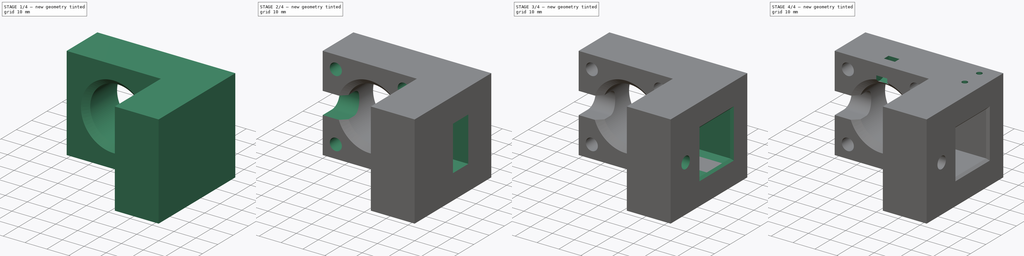
[diagram: build sequence overview — one tinted view per stage of 4, left to right]
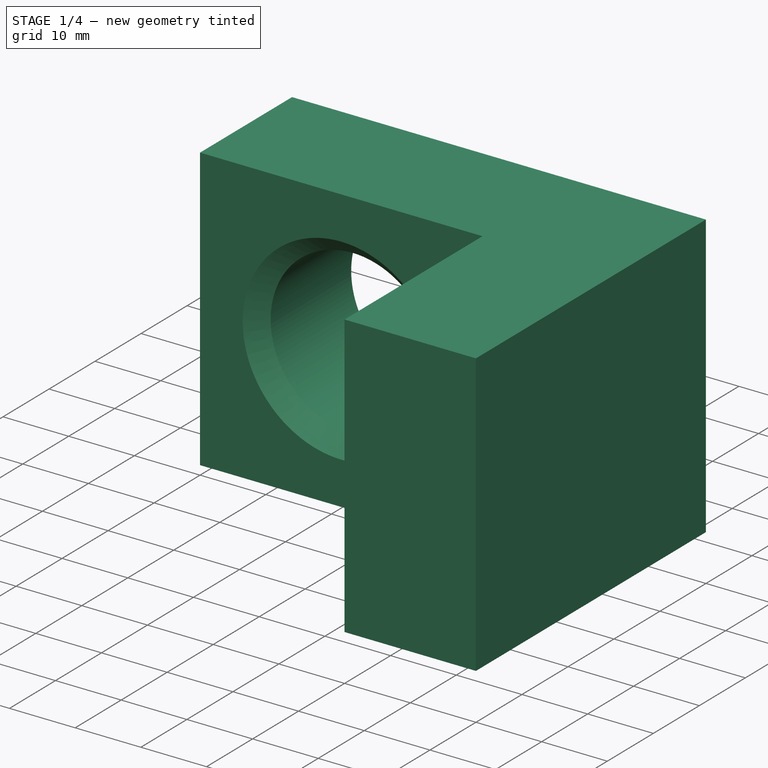
[diagram: stage 1 of 4 — iso view after this stage's code; geometry added in this stage tinted green]
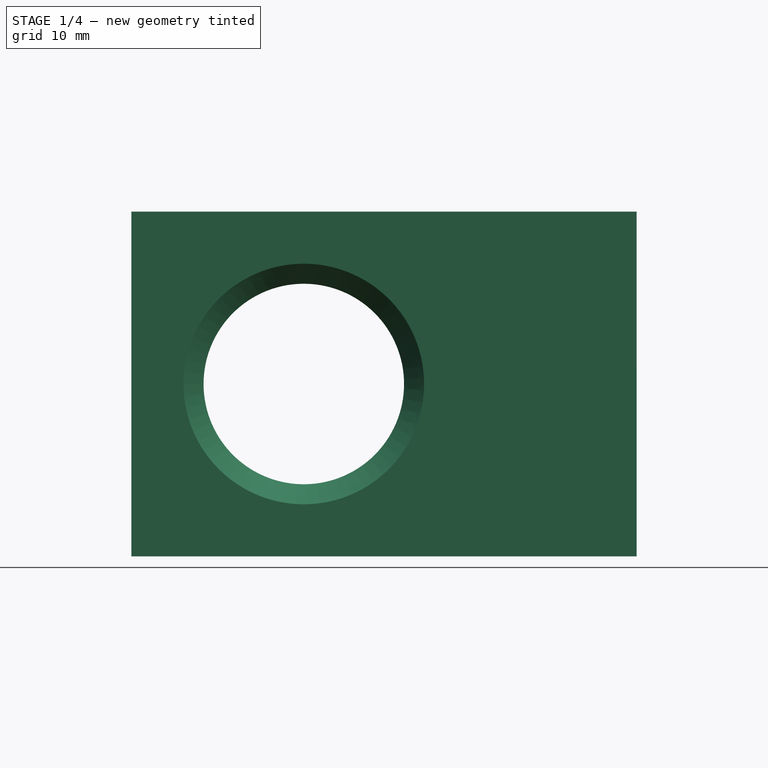
[diagram: stage 1 of 4 — front view after this stage's code; geometry added in this stage tinted green]
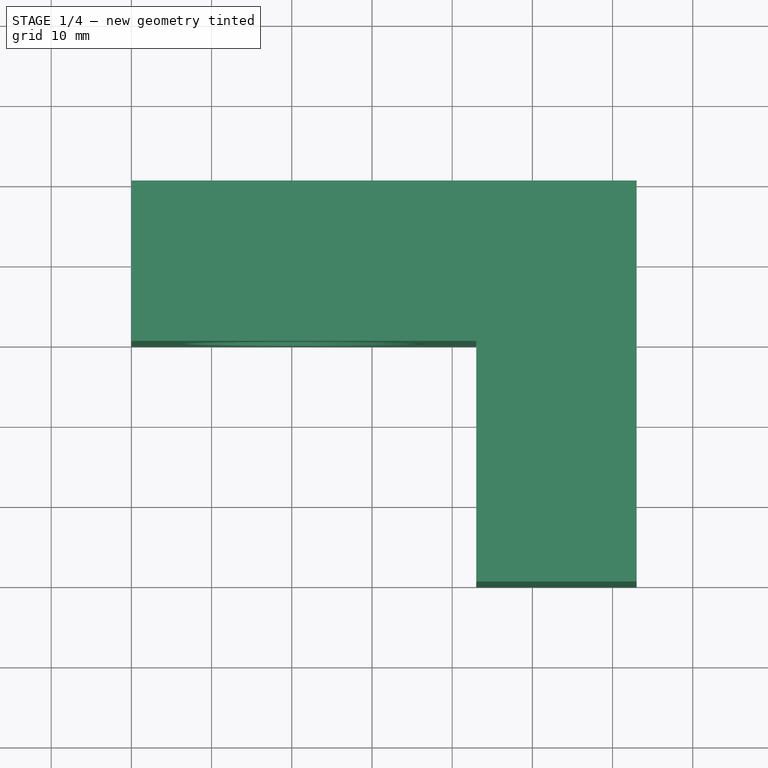
[diagram: stage 1 of 4 — top view after this stage's code; geometry added in this stage tinted green]
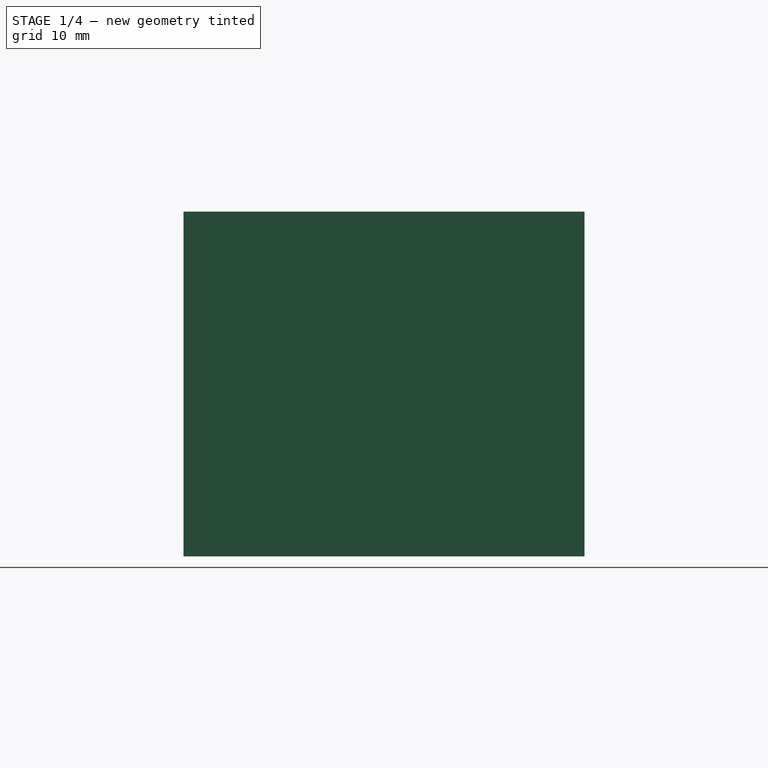
[diagram: stage 1 of 4 — right view after this stage's code; geometry added in this stage tinted green]
FCSTD DOCUMENT  (FreeCAD 0.20R29177 (Git))
Label: Feed motor
License: All rights reserved
LicenseURL: http://en.wikipedia.org/wiki/All_rights_reserved
objects: Sketcher::SketchObject×9, PartDesign::Hole×4, PartDesign::Pocket×4, PartDesign::Pad×1, PartDesign::Chamfer×1, PartDesign::Body×1
note: 30 computed .brp shape members not serialized (recipe doc carries the construction recipe); baked Part::Feature solids carry a one-line shape summary decoded from their .brp

FEATURE [Sketcher::SketchObject] Sketch
  FullyConstrained = false
  MapMode = 5
  Support = -> [XY_Plane]
  sketch-geometry (6):
    g0: LineSegment StartX=43 StartY=-20 StartZ=0 EndX=0 EndY=-20 EndZ=0
    g1: LineSegment StartX=0 StartY=-20 StartZ=0 EndX=0 EndY=0 EndZ=0
    g2: LineSegment StartX=63 StartY=1e-16 StartZ=0 EndX=63 EndY=-50 EndZ=0
    g3: LineSegment StartX=63 StartY=-50 StartZ=0 EndX=43 EndY=-50 EndZ=0
    g4: LineSegment StartX=43 StartY=-50 StartZ=0 EndX=43 EndY=-20 EndZ=0
    g5: LineSegment StartX=0 StartY=1e-16 StartZ=0 EndX=63 EndY=1e-16 EndZ=0
  constraints (17):
    c: Coincident(g0,g1)
    c: Horizontal(g0)
    c: Vertical(g1)
    c: DistanceY(g1,g1) = 20
    c: PointOnObject(g2,g-1)
    c: Vertical(g2)
    c: Coincident(g3,g2)
    c: Horizontal(g3)
    c: Coincident(g4,g3)
    c: Vertical(g4)
    c: Coincident(g0,g4)
    c: DistanceX(g0,g0) = 43
    c: Coincident(g5,g1)
    c: Coincident(g5,g2)
    c: Horizontal(g5)
    c: DistanceX(g3,g3) = 20
    c: DistanceY(g3,g0) = 30
FEATURE [PartDesign::Pad] Pad
  Direction = (1,1,1)
  Length = 43
  Length2 = 100
  Profile = -> Sketch
  Type = 0
FEATURE [Sketcher::SketchObject] Sketch001
  ExternalGeometry = -> [Pad]
  FullyConstrained = false
  MapMode = 5
  Placement = pos=(0,-20,0) rot=(1,0,0;1.5708rad)
  Support = -> [Pad]
  sketch-geometry (4):
    g0: GeomPoint X=21.5 Y=21.5 Z=0
    g1: LineSegment StartX=0 StartY=43 StartZ=0 EndX=21.5 EndY=21.5 EndZ=0
    g2: LineSegment StartX=21.5 StartY=21.5 StartZ=0 EndX=0 EndY=0 EndZ=0
    g3: Circle CenterX=21.5 CenterY=21.5 CenterZ=0 NormalX=0 NormalY=0 NormalZ=1 AngleXU=0 Radius=7.98542
  constraints (7):
    c: Coincident(g1,g-3)
    c: Coincident(g1,g0)
    c: Coincident(g2,g0)
    c: Coincident(g2,g-1)
    c: Equal(g2,g1)
    c: Angle(g-3,g1) = 0.785398
    c: Coincident(g3,g0)
FEATURE [PartDesign::Hole] Hole
  BaseFeature = -> Pad
  CustomThreadClearance = 0
  Depth = 25
  DepthType = 1
  Diameter = 25
  DrillForDepth = false
  DrillPoint = 1
  DrillPointAngle = 118
  HoleCutCountersinkAngle = 90
  HoleCutCustomValues = false
  HoleCutDepth = 0
  HoleCutDiameter = 30
  HoleCutType = 2
  ModelThread = false
  Profile = -> Sketch001
  Tapered = false
  TaperedAngle = 90
  ThreadClass = 0
  ThreadDepth = 23.5
  ThreadDepthType = 0
  ThreadDirection = 0
  ThreadFit = 0
  ThreadSize = 0
  ThreadType = 0
  Threaded = false
  UseCustomThreadClearance = false
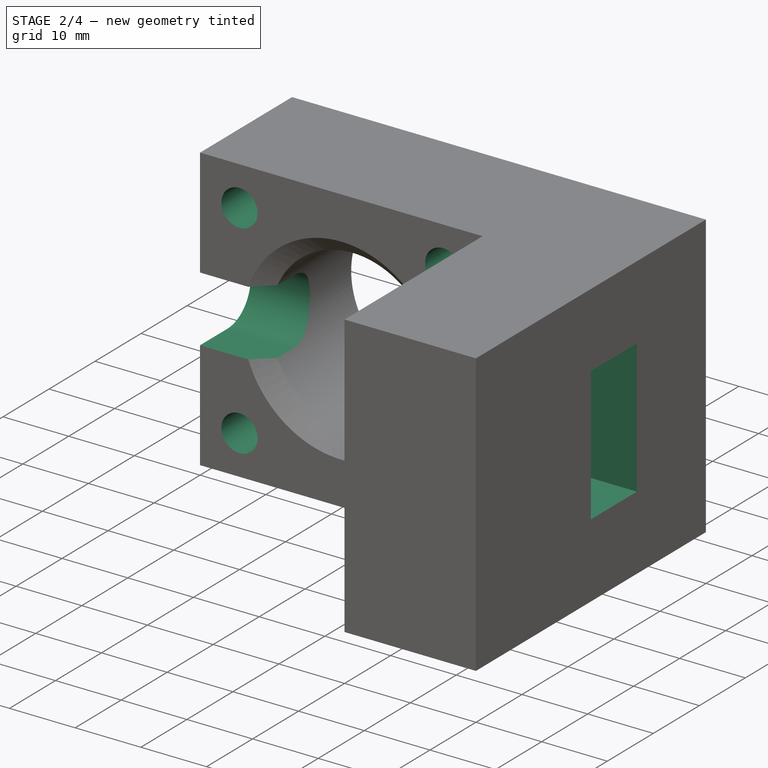
[diagram: stage 2 of 4 — iso view after this stage's code; geometry added in this stage tinted green]
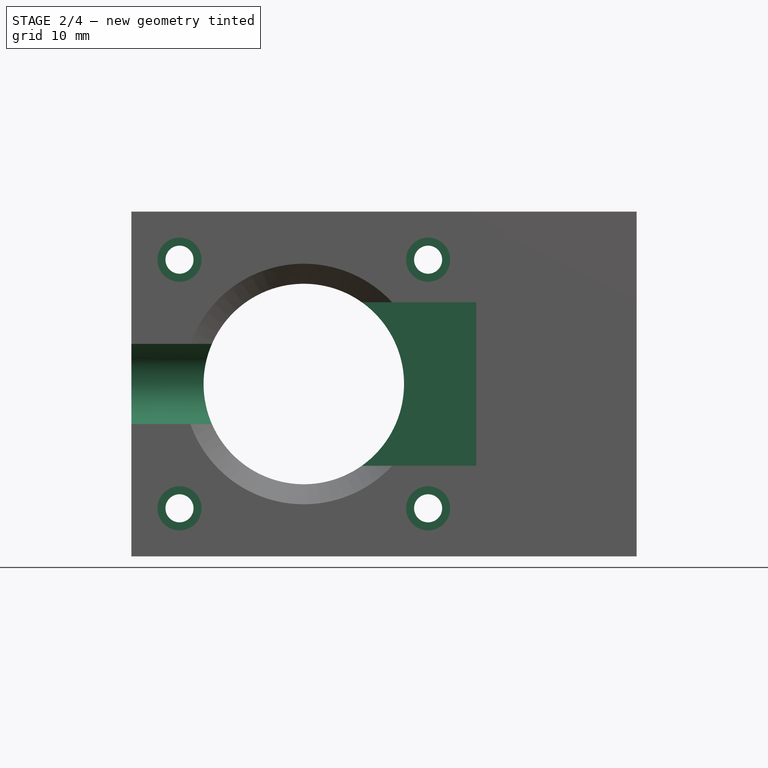
[diagram: stage 2 of 4 — front view after this stage's code; geometry added in this stage tinted green]
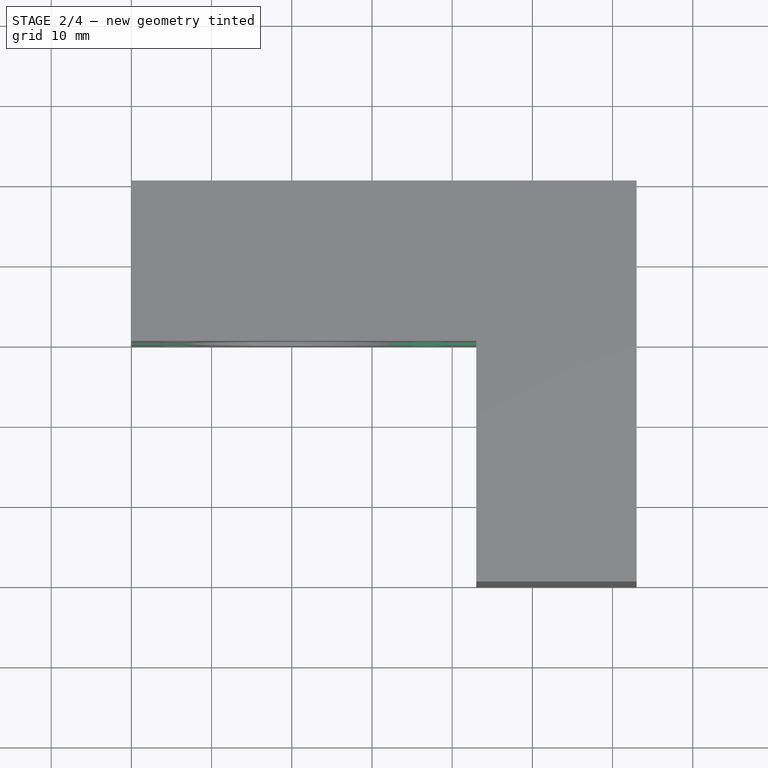
[diagram: stage 2 of 4 — top view after this stage's code; geometry added in this stage tinted green]
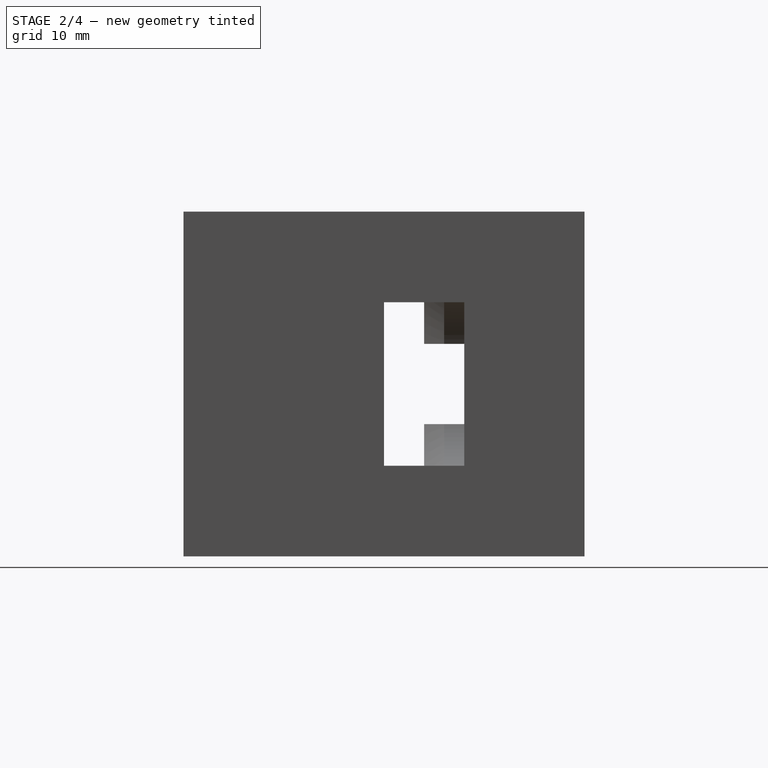
[diagram: stage 2 of 4 — right view after this stage's code; geometry added in this stage tinted green]
FEATURE [Sketcher::SketchObject] Sketch002
  ExternalGeometry = -> [Hole]
  FullyConstrained = false
  MapMode = 5
  Placement = pos=(0,-20,0) rot=(1,0,0;1.5708rad)
  Support = -> [Hole]
  sketch-geometry (10):
    g0: LineSegment StartX=6 StartY=37 StartZ=0 EndX=37 EndY=37 EndZ=0
    g1: LineSegment StartX=37 StartY=37 StartZ=0 EndX=37 EndY=6 EndZ=0
    g2: LineSegment StartX=37 StartY=6 StartZ=0 EndX=6 EndY=6 EndZ=0
    g3: LineSegment StartX=6 StartY=6 StartZ=0 EndX=6 EndY=37 EndZ=0
    g4: LineSegment StartX=0 StartY=43 StartZ=0 EndX=6 EndY=37 EndZ=0
    g5: LineSegment StartX=6 StartY=6 StartZ=0 EndX=-9e-16 EndY=0 EndZ=0
    g6: Circle CenterX=6 CenterY=37 CenterZ=0 NormalX=0 NormalY=0 NormalZ=1 AngleXU=0 Radius=2.36262
    g7: Circle CenterX=37 CenterY=37 CenterZ=0 NormalX=0 NormalY=0 NormalZ=1 AngleXU=0 Radius=1.92295
    g8: Circle CenterX=37 CenterY=6 CenterZ=0 NormalX=0 NormalY=0 NormalZ=1 AngleXU=0 Radius=1.78946
    g9: Circle CenterX=6 CenterY=6 CenterZ=0 NormalX=0 NormalY=0 NormalZ=1 AngleXU=0 Radius=1.62966
  constraints (20):
    c: Coincident(g0,g1)
    c: Coincident(g1,g2)
    c: Coincident(g2,g3)
    c: Coincident(g3,g0)
    c: Horizontal(g0)
    c: Horizontal(g2)
    c: Vertical(g1)
    c: Vertical(g3)
    c: Coincident(g4,g-3)
    c: Coincident(g4,g0)
    c: Coincident(g5,g2)
    c: Coincident(g5,g-1)
    c: Equal(g4,g5)
    c: Equal(g2,g3)
    c: Angle(g-3,g4) = 0.785398
    c: DistanceY(g3,g3) = 31
    c: Coincident(g6,g0)
    c: Coincident(g7,g0)
    c: Coincident(g8,g1)
    c: Coincident(g9,g2)
FEATURE [PartDesign::Hole] Hole001  label="Hole 4x"
  BaseFeature = -> Hole
  CustomThreadClearance = 0
  Depth = 25
  DepthType = 1
  Diameter = 3.5
  DrillForDepth = false
  DrillPoint = 1
  DrillPointAngle = 118
  HoleCutCountersinkAngle = 90
  HoleCutCustomValues = false
  HoleCutDepth = 15
  HoleCutDiameter = 5.5
  HoleCutType = 1
  ModelThread = false
  Profile = -> Sketch002
  Tapered = false
  TaperedAngle = 90
  ThreadClass = 0
  ThreadDepth = 23.5
  ThreadDepthType = 0
  ThreadDirection = 0
  ThreadFit = 0
  ThreadSize = 0
  ThreadType = 0
  Threaded = false
  UseCustomThreadClearance = false
FEATURE [Sketcher::SketchObject] Sketch003
  ExternalGeometry = -> [Hole001]
  FullyConstrained = false
  MapMode = 5
  Placement = pos=(0,-20,0) rot=(1,0,0;1.5708rad)
  Support = -> [Hole001]
  sketch-geometry (6):
    g0: LineSegment StartX=22.9002 StartY=31.7 StartZ=0 EndX=85.1102 EndY=31.7 EndZ=0
    g1: LineSegment StartX=85.1102 StartY=31.7 StartZ=0 EndX=85.1102 EndY=11.3 EndZ=0
    g2: LineSegment StartX=85.1102 StartY=11.3 StartZ=0 EndX=22.9002 EndY=11.3 EndZ=0
    g3: LineSegment StartX=22.9002 StartY=11.3 StartZ=0 EndX=22.9002 EndY=31.7 EndZ=0
    g4: LineSegment StartX=0 StartY=43 StartZ=0 EndX=22.9002 EndY=31.7 EndZ=0
    g5: LineSegment StartX=22.9002 StartY=11.3 StartZ=0 EndX=0 EndY=0 EndZ=0
  constraints (14):
    c: Coincident(g0,g1)
    c: Coincident(g1,g2)
    c: Coincident(g2,g3)
    c: Coincident(g3,g0)
    c: Horizontal(g0)
    c: Horizontal(g2)
    c: Vertical(g1)
    c: Vertical(g3)
    c: Coincident(g4,g-3)
    c: Coincident(g4,g0)
    c: Coincident(g5,g2)
    c: Coincident(g5,g-1)
    c: Equal(g4,g5)
    c: DistanceY(g3,g3) = 20.4
FEATURE [PartDesign::Pocket] Pocket
  BaseFeature = -> Hole001
  Direction = (1,1,1)
  Length = 5
  Length2 = 5
  Profile = -> Sketch003
  Type = 4
FEATURE [Sketcher::SketchObject] Sketch004
  ExternalGeometry = -> [Pocket]
  FullyConstrained = true
  MapMode = 5
  Placement = pos=(0,0,0) rot=(0.57735,-0.57735,-0.57735;2.0944rad)
  Support = -> [Pocket]
  sketch-geometry (6):
    g0: ArcOfCircle CenterX=14 CenterY=21.5 CenterZ=0 NormalX=0 NormalY=0 NormalZ=1 AngleXU=0 Radius=5 StartAngle=1.5708 EndAngle=4.71239
    g1: LineSegment StartX=20 StartY=43 StartZ=0 EndX=14 EndY=21.5 EndZ=0
    g2: LineSegment StartX=14 StartY=21.5 StartZ=0 EndX=20 EndY=0 EndZ=0
    g3: LineSegment StartX=14 StartY=26.5 StartZ=0 EndX=20 EndY=26.5 EndZ=0
    g4: LineSegment StartX=20 StartY=26.5 StartZ=0 EndX=20 EndY=16.5 EndZ=0
    g5: LineSegment StartX=20 StartY=16.5 StartZ=0 EndX=14 EndY=16.5 EndZ=0
  constraints (15):
    c: Diameter(g0) = 10
    c: DistanceX(g0,g-3) = 6
    c: Coincident(g1,g-3)
    c: Coincident(g1,g0)
    c: Coincident(g2,g0)
    c: Coincident(g2,g-3)
    c: Equal(g1,g2)
    c: PointOnObject(g3,g-3)
    c: Horizontal(g3)
    c: Coincident(g4,g3)
    c: PointOnObject(g4,g-3)
    c: Coincident(g5,g4)
    c: Horizontal(g5)
    c: Tangent(g5,g0) = 1.5708
    c: Tangent(g3,g0) = 1.5708
FEATURE [PartDesign::Pocket] Pocket001  label="Pocket screw"
  BaseFeature = -> Pocket
  Direction = (1,1,1)
  Length = 20
  Length2 = 100
  Profile = -> Sketch004
  Type = 0
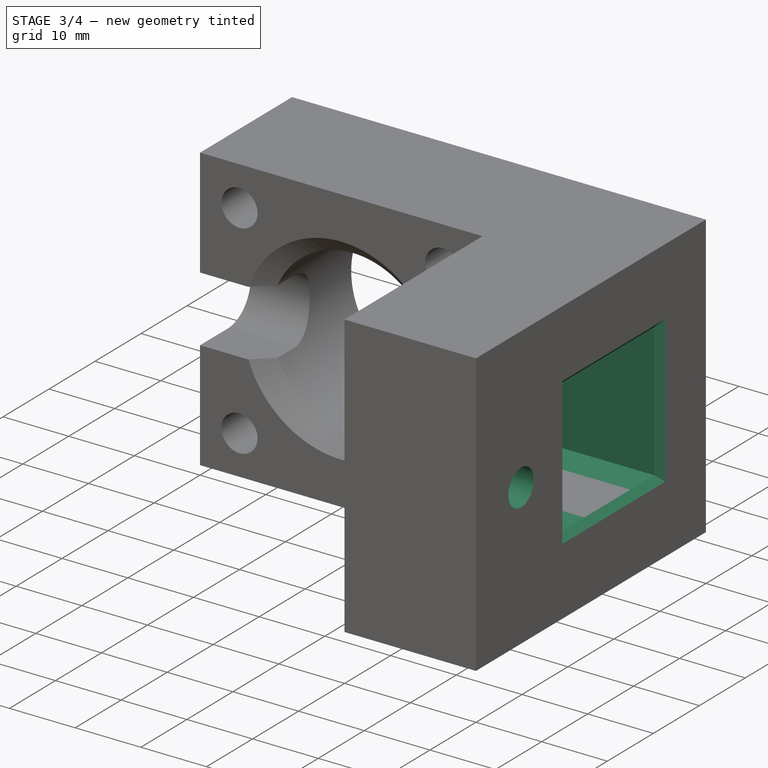
[diagram: stage 3 of 4 — iso view after this stage's code; geometry added in this stage tinted green]
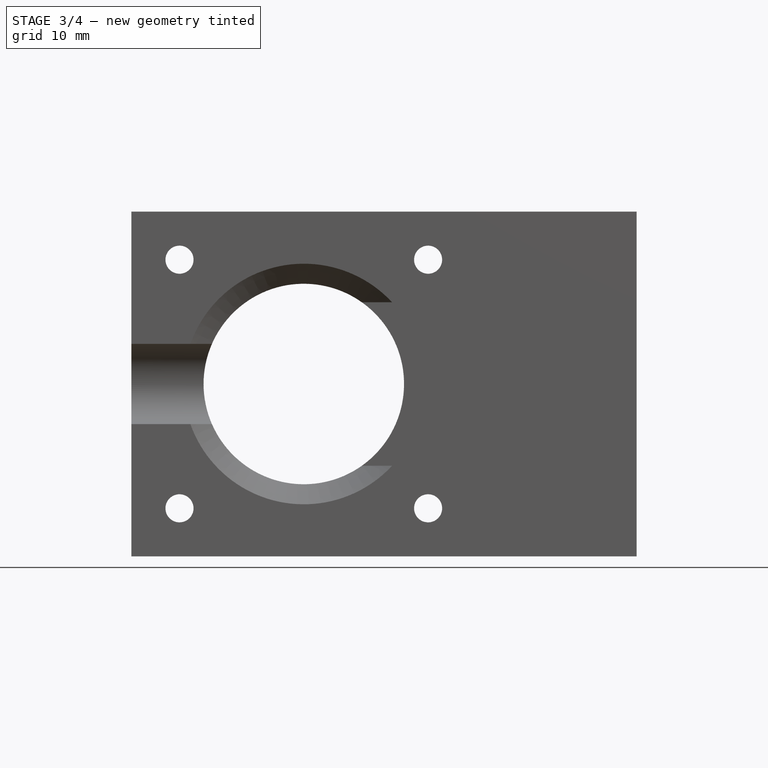
[diagram: stage 3 of 4 — front view after this stage's code; geometry added in this stage tinted green]
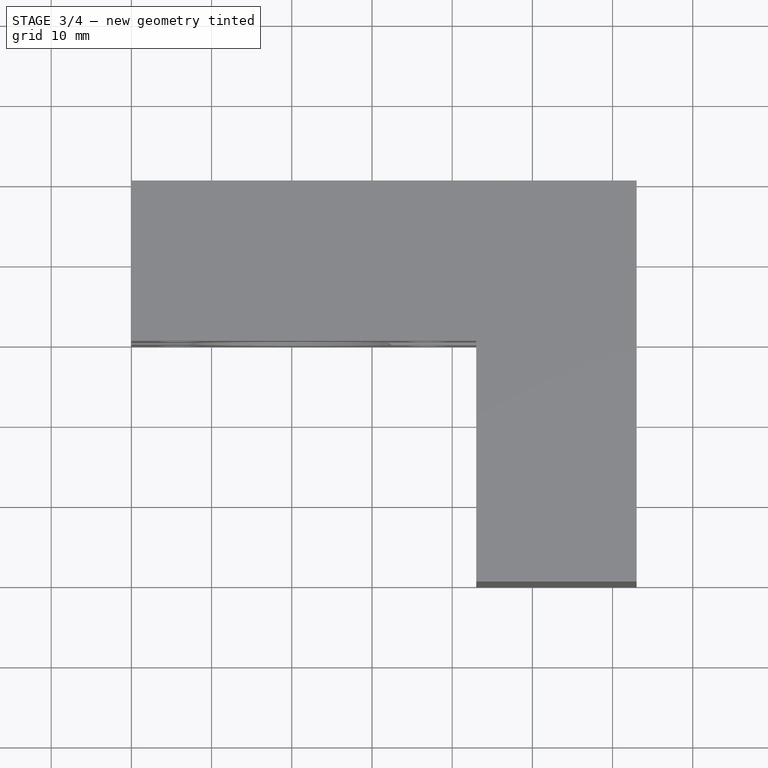
[diagram: stage 3 of 4 — top view after this stage's code; geometry added in this stage tinted green]
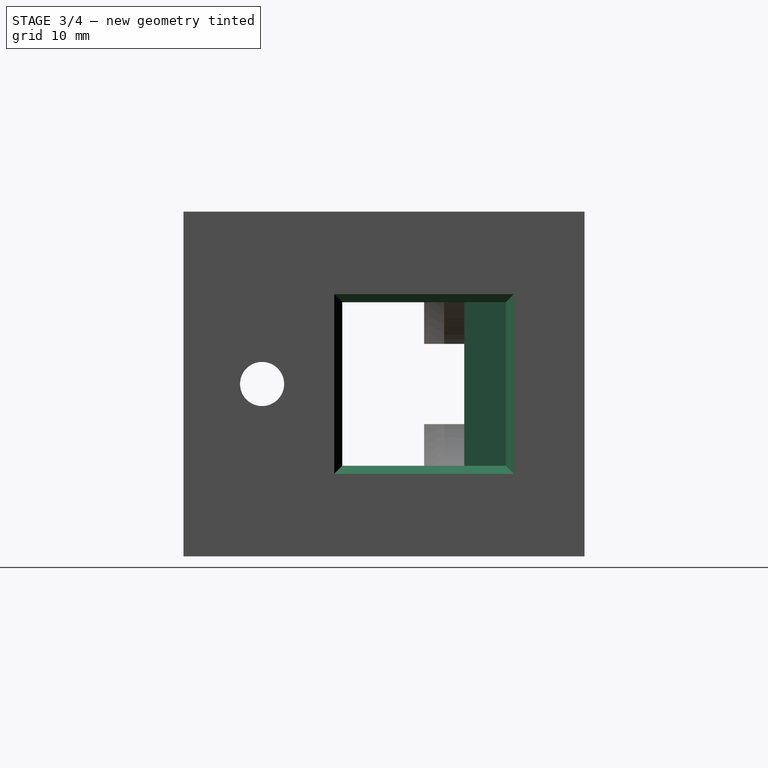
[diagram: stage 3 of 4 — right view after this stage's code; geometry added in this stage tinted green]
FEATURE [Sketcher::SketchObject] Sketch005
  ExternalGeometry = -> [Pocket001]
  FullyConstrained = true
  MapMode = 5
  Placement = pos=(63,0,0) rot=(0.57735,0.57735,0.57735;2.0944rad)
  Support = -> [Pocket001]
  sketch-geometry (7):
    g0: LineSegment StartX=-9.8 StartY=31.7 StartZ=0 EndX=-30.2 EndY=31.7 EndZ=0
    g1: LineSegment StartX=-30.2 StartY=31.7 StartZ=0 EndX=-30.2 EndY=11.3 EndZ=0
    g2: LineSegment StartX=-30.2 StartY=11.3 StartZ=0 EndX=-9.8 EndY=11.3 EndZ=0
    g3: LineSegment StartX=-9.8 StartY=11.3 StartZ=0 EndX=-9.8 EndY=31.7 EndZ=0
    g4: LineSegment StartX=-20 StartY=16.5 StartZ=0 EndX=-30.2 EndY=11.3 EndZ=0
    g5: LineSegment StartX=-20 StartY=16.5 StartZ=0 EndX=-9.8 EndY=11.3 EndZ=0
    g6: LineSegment StartX=-20 StartY=26.5 StartZ=0 EndX=-30.2 EndY=31.7 EndZ=0
  constraints (18):
    c: Coincident(g0,g1)
    c: Coincident(g1,g2)
    c: Coincident(g2,g3)
    c: Coincident(g3,g0)
    c: Horizontal(g0)
    c: Horizontal(g2)
    c: Vertical(g1)
    c: Vertical(g3)
    c: DistanceY(g1,g1) = 20.4
    c: Equal(g0,g1)
    c: Coincident(g4,g-4)
    c: Coincident(g4,g1)
    c: Coincident(g5,g4)
    c: Coincident(g5,g2)
    c: Coincident(g6,g-3)
    c: Coincident(g6,g0)
    c: Equal(g4,g6)
    c: Equal(g4,g5)
FEATURE [PartDesign::Pocket] Pocket002  label="Pocket Vslot"
  BaseFeature = -> Pocket001
  Direction = (1,1,1)
  Length = 0
  Length2 = 100
  Profile = -> Sketch005
  Type = 3
  UpToFace = -> Pocket001 [Face7]
FEATURE [Sketcher::SketchObject] Sketch006
  ExternalGeometry = -> [Pocket002]
  FullyConstrained = false
  MapMode = 5
  Placement = pos=(43,0,0) rot=(0.57735,-0.57735,-0.57735;2.0944rad)
  Support = -> [Pocket002]
  sketch-geometry (3):
    g0: LineSegment StartX=30.2 StartY=31.7 StartZ=0 EndX=40.2 EndY=21.5 EndZ=0
    g1: LineSegment StartX=40.2 StartY=21.5 StartZ=0 EndX=30.2 EndY=11.3 EndZ=0
    g2: Circle CenterX=40.2 CenterY=21.5 CenterZ=0 NormalX=0 NormalY=0 NormalZ=1 AngleXU=0 Radius=6.44091
  constraints (6):
    c: Coincident(g0,g-3)
    c: Coincident(g1,g0)
    c: Coincident(g1,g-3)
    c: Coincident(g2,g0)
    c: DistanceX(g0,g0) = 10
    c: Equal(g1,g0)
FEATURE [PartDesign::Hole] Hole002  label="Hole Vslot mounting"
  BaseFeature = -> Pocket002
  CustomThreadClearance = 0
  Depth = 25
  DepthType = 0
  Diameter = 5.5
  DrillForDepth = false
  DrillPoint = 1
  DrillPointAngle = 118
  HoleCutCountersinkAngle = 90
  HoleCutCustomValues = false
  HoleCutDepth = 15
  HoleCutDiameter = 9
  HoleCutType = 1
  ModelThread = false
  Profile = -> Sketch006
  Tapered = false
  TaperedAngle = 90
  ThreadClass = 0
  ThreadDepth = 23.5
  ThreadDepthType = 0
  ThreadDirection = 0
  ThreadFit = 0
  ThreadSize = 0
  ThreadType = 0
  Threaded = false
  UseCustomThreadClearance = false
FEATURE [PartDesign::Chamfer] Chamfer
  Angle = 45
  Base = -> Hole002 [Edge56,Edge54,Edge57,Edge55,Edge53,Edge51,Edge50,Edge52]
  BaseFeature = -> Hole002
  ChamferType = 0
  FlipDirection = false
  Size = 1
  Size2 = 1
  SupportTransform = false
  UseAllEdges = false
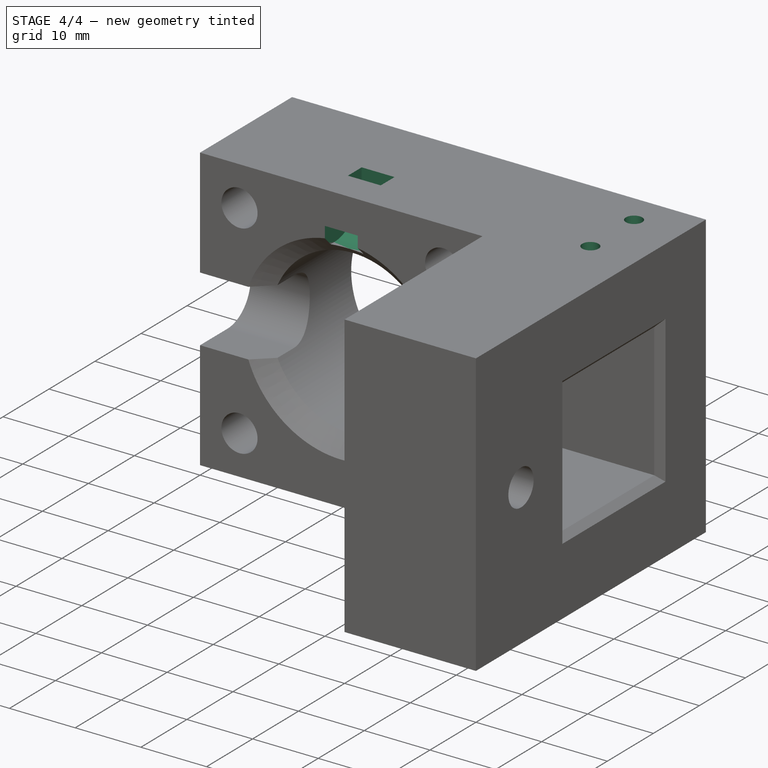
[diagram: stage 4 of 4 — iso view after this stage's code; geometry added in this stage tinted green]
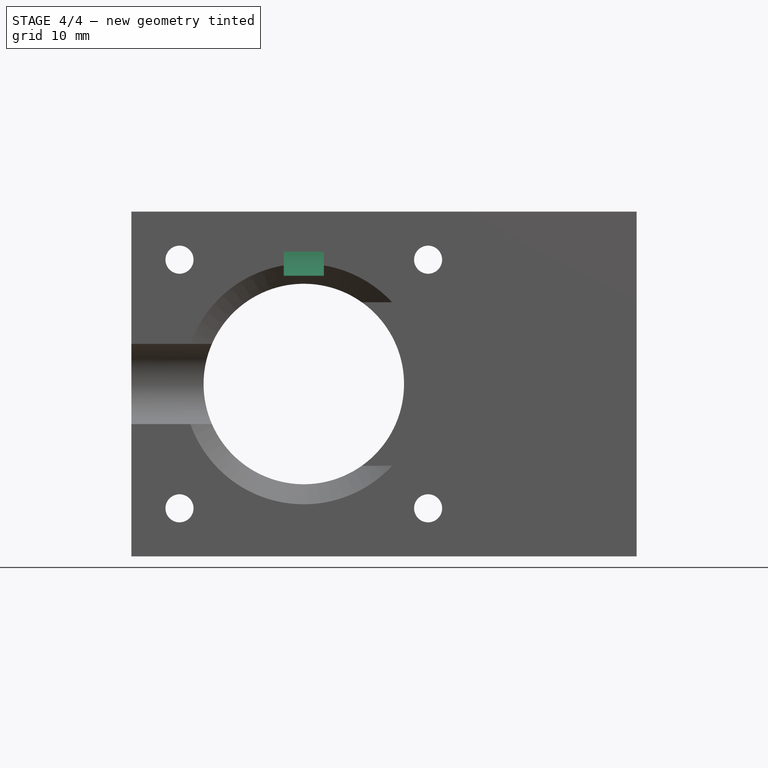
[diagram: stage 4 of 4 — front view after this stage's code; geometry added in this stage tinted green]
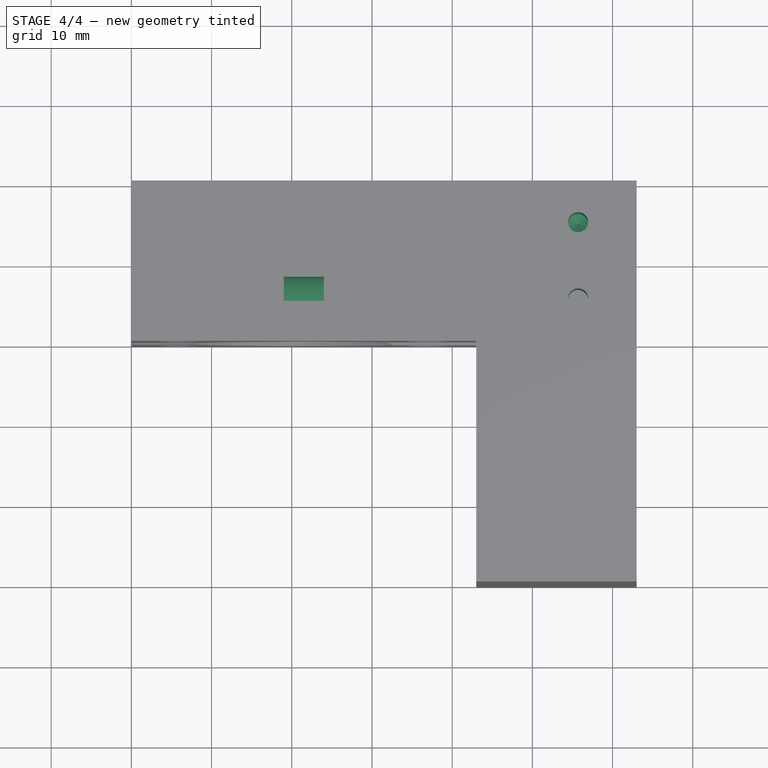
[diagram: stage 4 of 4 — top view after this stage's code; geometry added in this stage tinted green]
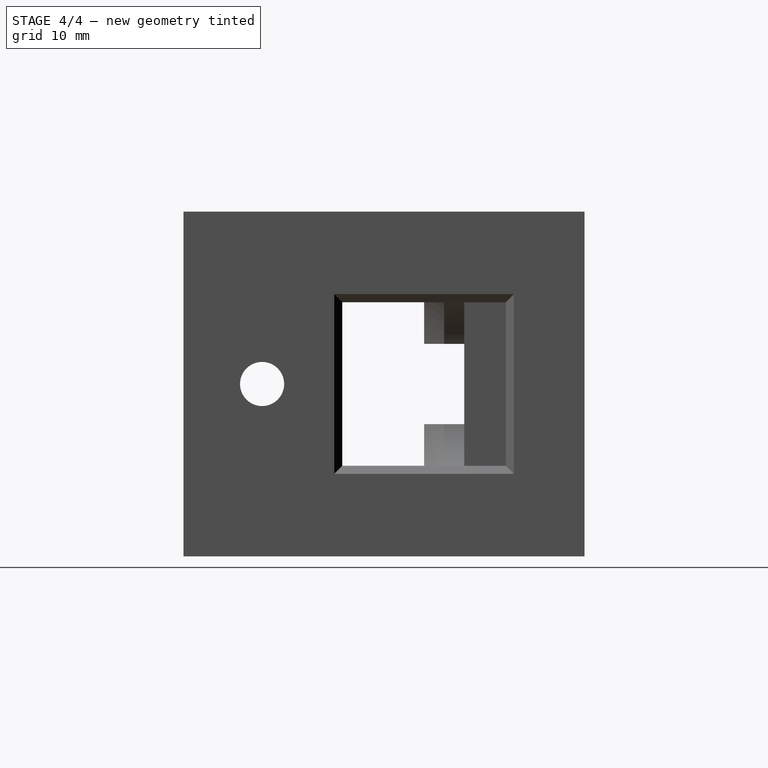
[diagram: stage 4 of 4 — right view after this stage's code; geometry added in this stage tinted green]
FEATURE [Sketcher::SketchObject] Sketch007
  ExternalGeometry = -> [Chamfer]
  FullyConstrained = false
  MapMode = 5
  Placement = pos=(0,0,43) rot=(0,0,1;0rad)
  Support = -> [Chamfer]
  sketch-geometry (3):
    g0: LineSegment StartX=55.7 StartY=-5.2 StartZ=0 EndX=55.7 EndY=-14.7 EndZ=0
    g1: Circle CenterX=55.7 CenterY=-5.2 CenterZ=0 NormalX=0 NormalY=0 NormalZ=1 AngleXU=0 Radius=1.92732
    g2: Circle CenterX=55.7 CenterY=-14.7 CenterZ=0 NormalX=0 NormalY=0 NormalZ=1 AngleXU=0 Radius=1.92732
  constraints (7):
    c: Coincident(g1,g0)
    c: Coincident(g2,g0)
    c: Vertical(g0)
    c: DistanceX(g1,g-3) = 7.3
    c: DistanceY(g0,g0) = 9.5
    c: DistanceY(g1,g-3) = 5.2
    c: Equal(g1,g2)
FEATURE [PartDesign::Hole] Hole003
  BaseFeature = -> Chamfer
  CustomThreadClearance = 0
  Depth = 12
  DepthType = 0
  Diameter = 2.5
  DrillForDepth = false
  DrillPoint = 1
  DrillPointAngle = 118
  HoleCutCountersinkAngle = 90
  HoleCutCustomValues = false
  HoleCutDepth = 0
  HoleCutDiameter = 6.1
  HoleCutType = 0
  ModelThread = false
  Profile = -> Sketch007
  Tapered = false
  TaperedAngle = 90
  ThreadClass = 0
  ThreadDepth = 12
  ThreadDepthType = 0
  ThreadDirection = 0
  ThreadFit = 0
  ThreadSize = 0
  ThreadType = 0
  Threaded = false
  UseCustomThreadClearance = false
FEATURE [Sketcher::SketchObject] Sketch008
  AttachmentOffset = pos=(0,0,21.5) rot=(0,0,1;0rad)
  ExternalGeometry = -> [Hole003]
  FullyConstrained = true
  MapMode = 5
  Placement = pos=(21.5,-4.8e-15,4.8e-15) rot=(0.57735,0.57735,0.57735;2.0944rad)
  Support = -> [YZ_Plane]
  sketch-geometry (10):
    g0: ArcOfCircle CenterX=-18 CenterY=41 CenterZ=0 NormalX=0 NormalY=0 NormalZ=1 AngleXU=0 Radius=6 StartAngle=4.71239 EndAngle=6.28319
    g1: LineSegment StartX=-18 StartY=35 StartZ=0 EndX=-20 EndY=35 EndZ=0
    g2: LineSegment StartX=-12 StartY=43 StartZ=0 EndX=-12 EndY=41 EndZ=0
    g3: GeomPoint X=-12 Y=35 Z=0
    g4: ArcOfCircle CenterX=-18 CenterY=41 CenterZ=0 NormalX=0 NormalY=0 NormalZ=1 AngleXU=0 Radius=3 StartAngle=4.71239 EndAngle=6.28319
    g5: LineSegment StartX=-18 StartY=38 StartZ=0 EndX=-20 EndY=38 EndZ=0
    g6: LineSegment StartX=-15 StartY=43 StartZ=0 EndX=-15 EndY=41 EndZ=0
    g7: GeomPoint X=-15 Y=38 Z=0
    g8: LineSegment StartX=-20 StartY=35 StartZ=0 EndX=-20 EndY=38 EndZ=0
    g9: LineSegment StartX=-12 StartY=43 StartZ=0 EndX=-15 EndY=43 EndZ=0
  constraints (25):
    c: Tangent(g0,g1) = 1.5708
    c: Coincident(g9,g2) = 1.5708
    c: Tangent(g2,g0) = 1.5708
    c: Horizontal(g1)
    c: Vertical(g2)
    c: PointOnObject(g3,g1)
    c: PointOnObject(g3,g2)
    c: Tangent(g4,g5) = 1.5708
    c: Coincident(g9,g6) = 1.5708
    c: Tangent(g6,g4) = 1.5708
    c: Horizontal(g5)
    c: Vertical(g6)
    c: PointOnObject(g7,g5)
    c: PointOnObject(g7,g6)
    c: Coincident(g4,g0)
    c: Coincident(g8,g1)
    c: Coincident(g8,g5)
    c: Horizontal(g9)
    c: Vertical(g8)
    c: Radius(g4) = 3
    c: DistanceX(g9,g9) = 3
    c: PointOnObject(g-3,g9)
    c: PointOnObject(g-3,g8)
    c: DistanceX(g-3,g6) = 5
    c: DistanceY(g5,g-3) = 5
FEATURE [PartDesign::Pocket] Pocket003
  BaseFeature = -> Hole003
  Direction = (-1,2e-16,-3e-16)
  Length = 5
  Length2 = 5
  Midplane = true
  Profile = -> Sketch008
  ReferenceAxis = -> Sketch008 [N_Axis]
  Type = 0
FEATURE [PartDesign::Body] Body
  Group = -> [Sketch,Pad,Sketch001,Hole,Sketch002,Hole001,Sketch003,Pocket,Sketch004,Pocket001,Sketch005,Pocket002,Sketch006,Hole002,Chamfer,Sketch007,Hole003,Sketch008,Pocket003]
  Origin = -> Origin
  Tip = -> Pocket003
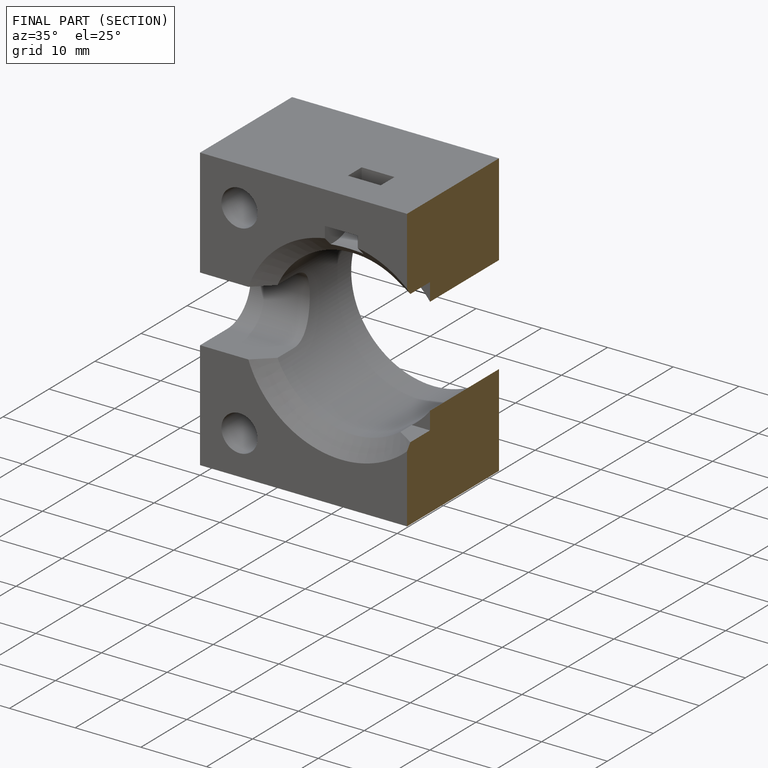
[diagram: finished part — half-section view (interior)]
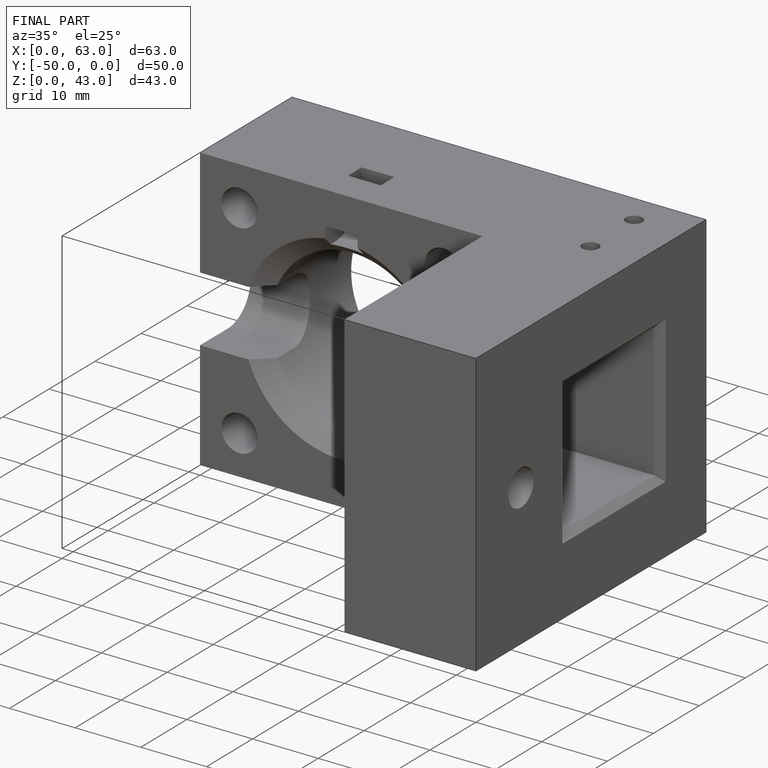
[diagram: finished part — iso view with bounding-box wireframe]
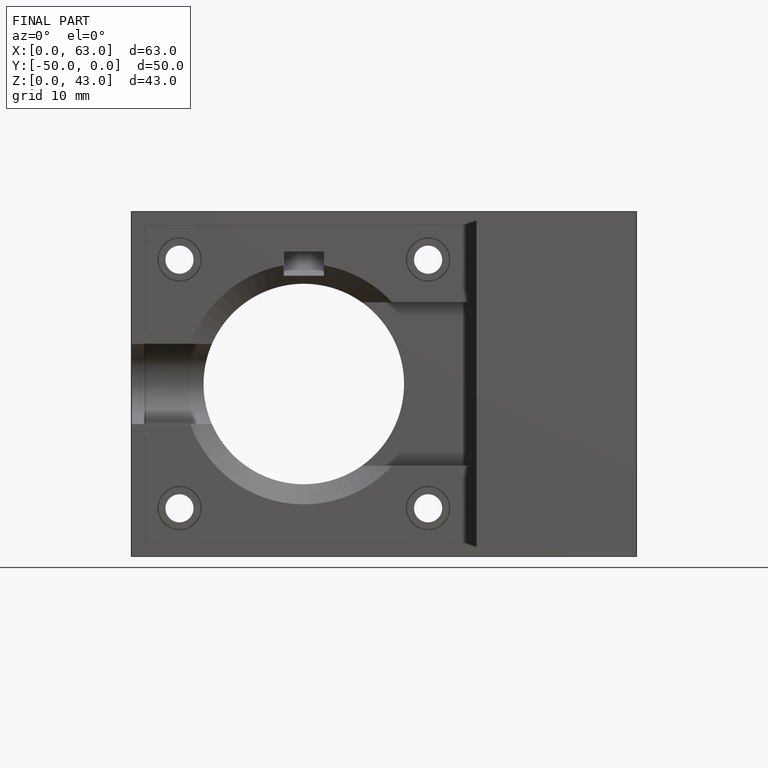
[diagram: finished part — front view with bounding-box wireframe]
